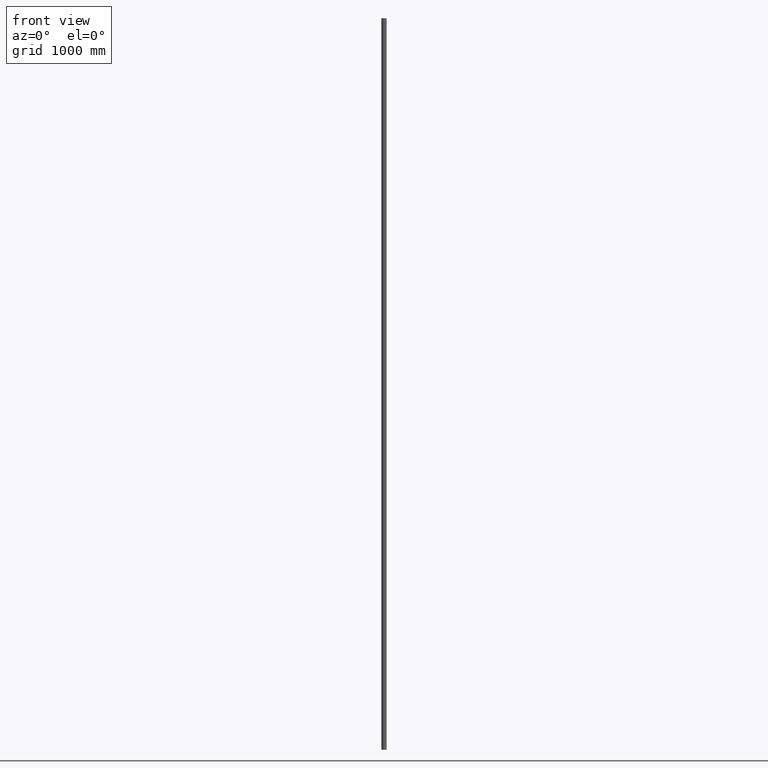
[diagram: clean part render]
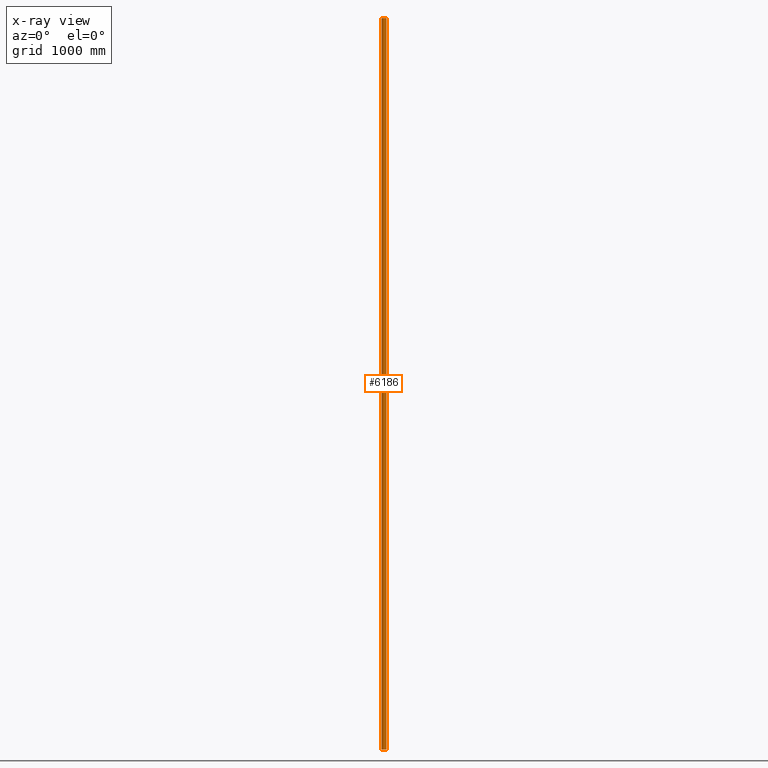
[diagram: x-ray — body ghosted, one internal face saturated and labeled with its STEP entity id]
A machine part, front view, then the same camera in x-ray: the body is ghosted and one INTERNAL B-rep face — a face not visible from any outside direction — is saturated and labeled: STEP entity #6186.
In plain terms, the highlighted cylindrical surface (bore or boss wall) has radius 21.2 mm, axis along (-0, -0, -1).
Its self-contained STEP definition (entity closure, byte-faithful):
#668 = EDGE_CURVE ( 'NONE', #4372, #4372, #8261, .T. ) ;
#775 = DIRECTION ( 'NONE',  ( 1.000000000000000000, 0.000000000000000000, 0.000000000000000000 ) ) ;
#1539 = CARTESIAN_POINT ( 'NONE',  ( 0.000000000000000000, 0.000000000000000000, -3000.000000000000000 ) ) ;
#2370 = CARTESIAN_POINT ( 'NONE',  ( 21.19999999999999929, 0.000000000000000000, 3000.000000000000000 ) ) ;
#2496 = CARTESIAN_POINT ( 'NONE',  ( 0.000000000000000000, 0.000000000000000000, 3000.000000000000000 ) ) ;
#2955 = AXIS2_PLACEMENT_3D ( 'NONE', #2979, #10377, #6802 ) ;
#2979 = CARTESIAN_POINT ( 'NONE',  ( 0.000000000000000000, 0.000000000000000000, 3000.000000000000000 ) ) ;
#3265 = DIRECTION ( 'NONE',  ( -1.000000000000000000, 0.000000000000000000, 0.000000000000000000 ) ) ;
#3967 = ORIENTED_EDGE ( 'NONE', *, *, #5235, .F. ) ;
#4118 = DIRECTION ( 'NONE',  ( -0.000000000000000000, -0.000000000000000000, -1.000000000000000000 ) ) ;
#4372 = VERTEX_POINT ( 'NONE', #4988 ) ;
#4539 = CYLINDRICAL_SURFACE ( 'NONE', #5074, 21.19999999999999929 ) ;
#4988 = CARTESIAN_POINT ( 'NONE',  ( 21.19999999999999929, 0.000000000000000000, -3000.000000000000000 ) ) ;
#5074 = AXIS2_PLACEMENT_3D ( 'NONE', #2496, #4118, #3265 ) ;
#5235 = EDGE_CURVE ( 'NONE', #9532, #9532, #10884, .T. ) ;
#5847 = AXIS2_PLACEMENT_3D ( 'NONE', #1539, #10476, #775 ) ;
#6186 = ADVANCED_FACE ( 'NONE', ( #6502, #8321 ), #4539, .T. ) ;
#6199 = EDGE_LOOP ( 'NONE', ( #3967 ) ) ;
#6502 = FACE_OUTER_BOUND ( 'NONE', #6199, .T. ) ;
#6802 = DIRECTION ( 'NONE',  ( 1.000000000000000000, 0.000000000000000000, 0.000000000000000000 ) ) ;
#8207 = EDGE_LOOP ( 'NONE', ( #10776 ) ) ;
#8261 = CIRCLE ( 'NONE', #5847, 21.19999999999999929 ) ;
#8321 = FACE_OUTER_BOUND ( 'NONE', #8207, .T. ) ;
#9532 = VERTEX_POINT ( 'NONE', #2370 ) ;
#10377 = DIRECTION ( 'NONE',  ( 0.000000000000000000, 0.000000000000000000, 1.000000000000000000 ) ) ;
#10476 = DIRECTION ( 'NONE',  ( 0.000000000000000000, 0.000000000000000000, 1.000000000000000000 ) ) ;
#10776 = ORIENTED_EDGE ( 'NONE', *, *, #668, .T. ) ;
#10884 = CIRCLE ( 'NONE', #2955, 21.19999999999999929 ) ;